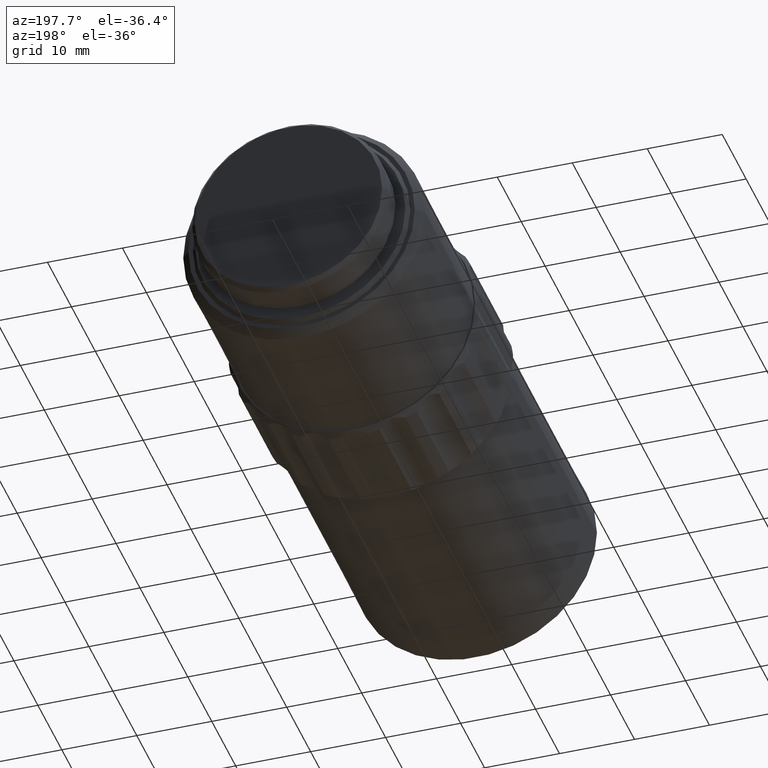
[diagram: clean part render]
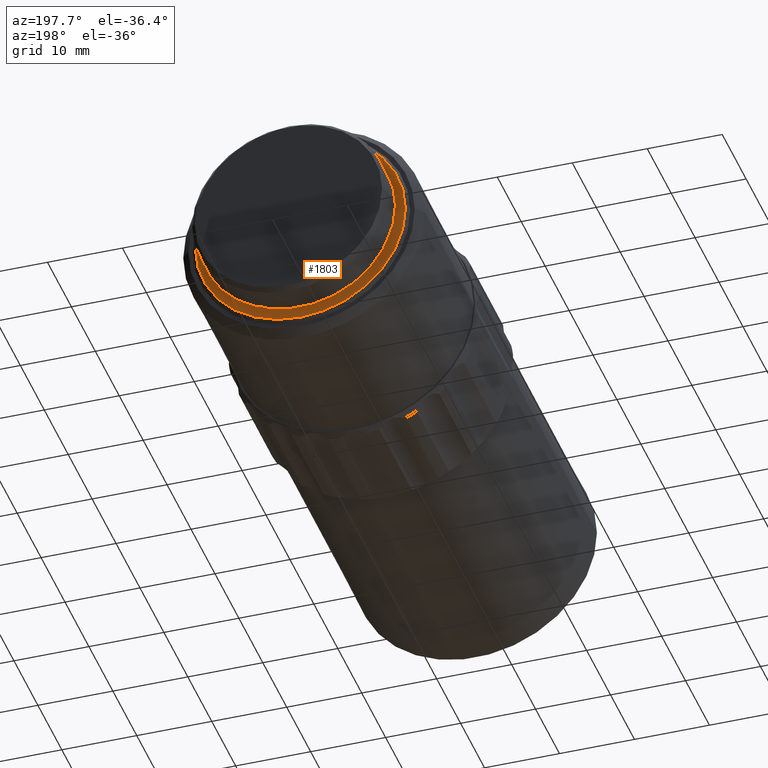
[diagram: same view with one face highlighted and labeled with its STEP entity id]
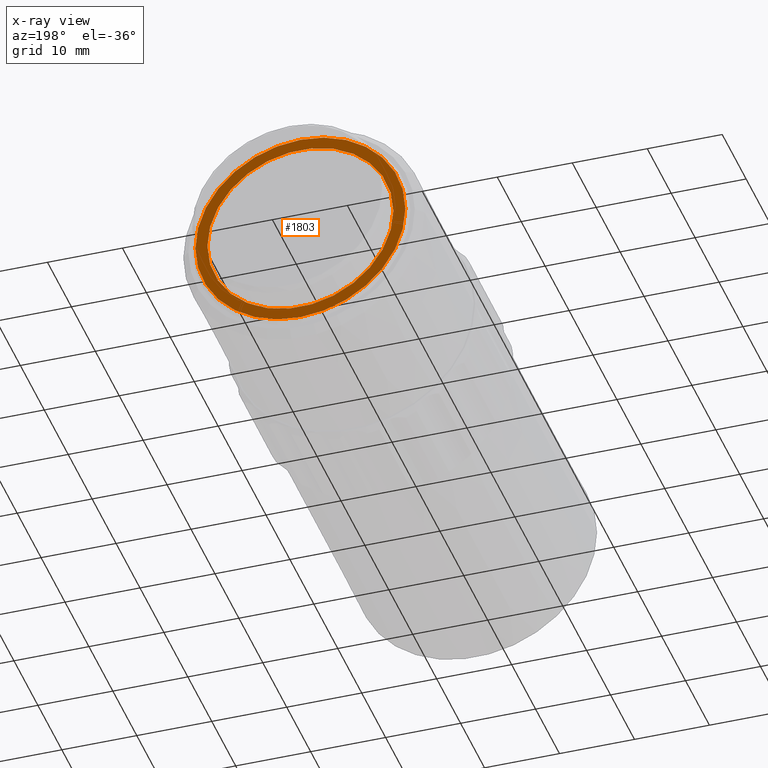
[diagram: x-ray of the same camera — body ghosted, the highlighted face saturated]
A machine part, auxiliary view. The second image highlights one B-rep face of the part: STEP entity #1803.
The next image is the same camera in x-ray: the body ghosted, the highlighted face saturated — about 0% of this face is hidden behind the body in this view.
In plain terms, the highlighted planar face has unit normal (-0, -1, 0).
Its self-contained STEP definition (entity closure, byte-faithful):
#14 = CARTESIAN_POINT ( 'NONE',  ( 1344.682968542926119, 1023.626069683050105, -1.347618331208670883E-09 ) ) ;
#71 = CARTESIAN_POINT ( 'NONE',  ( 1358.682918540625224, 1023.625936174584353, -1.347618331208670883E-09 ) ) ;
#189 = AXIS2_PLACEMENT_3D ( 'NONE', #2723, #744, #1224 ) ;
#216 = CIRCLE ( 'NONE', #639, 13.99994999833585929 ) ;
#336 = VERTEX_POINT ( 'NONE', #1365 ) ;
#354 = VERTEX_POINT ( 'NONE', #2225 ) ;
#395 = DIRECTION ( 'NONE',  ( 9.536353044915926586E-06, 0.9999999999545290397, -0.000000000000000000 ) ) ;
#477 = DIRECTION ( 'NONE',  ( -0.9999999999545290397, 9.536353047984535525E-06, 0.000000000000000000 ) ) ;
#509 = DIRECTION ( 'NONE',  ( 9.536353044915926586E-06, 0.9999999999545290397, -0.000000000000000000 ) ) ;
#631 = ORIENTED_EDGE ( 'NONE', *, *, #2579, .T. ) ;
#639 = AXIS2_PLACEMENT_3D ( 'NONE', #14, #509, #477 ) ;
#727 = EDGE_CURVE ( 'NONE', #336, #354, #1056, .T. ) ;
#744 = DIRECTION ( 'NONE',  ( -9.536353044915926586E-06, -0.9999999999545290397, 0.000000000000000000 ) ) ;
#826 = CARTESIAN_POINT ( 'NONE',  ( 1344.682968543071638, 1023.626084941192858, -1.347618331208670883E-09 ) ) ;
#867 = DIRECTION ( 'NONE',  ( -0.9999999999545290397, 9.536353047984535525E-06, 0.000000000000000000 ) ) ;
#879 = VERTEX_POINT ( 'NONE', #2151 ) ;
#934 = CARTESIAN_POINT ( 'NONE',  ( 1344.682968543071638, 1023.626084941192858, -1.347618331208670883E-09 ) ) ;
#955 = FACE_BOUND ( 'NONE', #1513, .T. ) ;
#986 = EDGE_LOOP ( 'NONE', ( #631, #1453 ) ) ;
#1034 = CARTESIAN_POINT ( 'NONE',  ( 1344.682968542926119, 1023.626069683050105, -1.347618331208670883E-09 ) ) ;
#1056 = CIRCLE ( 'NONE', #2566, 12.39995231767083794 ) ;
#1183 = DIRECTION ( 'NONE',  ( -0.9999999999545289286, 9.536353048750927547E-06, 0.000000000000000000 ) ) ;
#1224 = DIRECTION ( 'NONE',  ( 0.9999999999545290397, -9.536353044915926586E-06, 0.000000000000000000 ) ) ;
#1273 = AXIS2_PLACEMENT_3D ( 'NONE', #826, #2582, #1906 ) ;
#1286 = EDGE_CURVE ( 'NONE', #879, #2601, #2101, .T. ) ;
#1333 = EDGE_CURVE ( 'NONE', #354, #336, #1422, .T. ) ;
#1365 = CARTESIAN_POINT ( 'NONE',  ( 1357.082920860178774, 1023.625966690869859, -1.347616812652479333E-09 ) ) ;
#1417 = FACE_OUTER_BOUND ( 'NONE', #986, .T. ) ;
#1422 = CIRCLE ( 'NONE', #1273, 12.39995231767083794 ) ;
#1428 = ORIENTED_EDGE ( 'NONE', *, *, #727, .F. ) ;
#1429 = PLANE ( 'NONE',  #189 ) ;
#1453 = ORIENTED_EDGE ( 'NONE', *, *, #1286, .T. ) ;
#1513 = EDGE_LOOP ( 'NONE', ( #1666, #1428 ) ) ;
#1666 = ORIENTED_EDGE ( 'NONE', *, *, #1333, .F. ) ;
#1732 = AXIS2_PLACEMENT_3D ( 'NONE', #1034, #395, #867 ) ;
#1803 = ADVANCED_FACE ( 'NONE', ( #955, #1417 ), #1429, .F. ) ;
#1906 = DIRECTION ( 'NONE',  ( -0.9999999999545289286, 9.536353048750927547E-06, 0.000000000000000000 ) ) ;
#2101 = CIRCLE ( 'NONE', #1732, 13.99994999833585929 ) ;
#2151 = CARTESIAN_POINT ( 'NONE',  ( 1330.683018545227014, 1023.626203191515970, -1.347616616709275742E-09 ) ) ;
#2225 = CARTESIAN_POINT ( 'NONE',  ( 1332.283016225964730, 1023.626203191515970, -1.347618331208670883E-09 ) ) ;
#2566 = AXIS2_PLACEMENT_3D ( 'NONE', #934, #2703, #1183 ) ;
#2579 = EDGE_CURVE ( 'NONE', #2601, #879, #216, .T. ) ;
#2582 = DIRECTION ( 'NONE',  ( 9.536353044915926586E-06, 0.9999999999545290397, -0.000000000000000000 ) ) ;
#2601 = VERTEX_POINT ( 'NONE', #71 ) ;
#2703 = DIRECTION ( 'NONE',  ( 9.536353044915926586E-06, 0.9999999999545290397, -0.000000000000000000 ) ) ;
#2723 = CARTESIAN_POINT ( 'NONE',  ( -1344.682628027813962, 1023.651724051918109, -1.347618331208670883E-09 ) ) ;